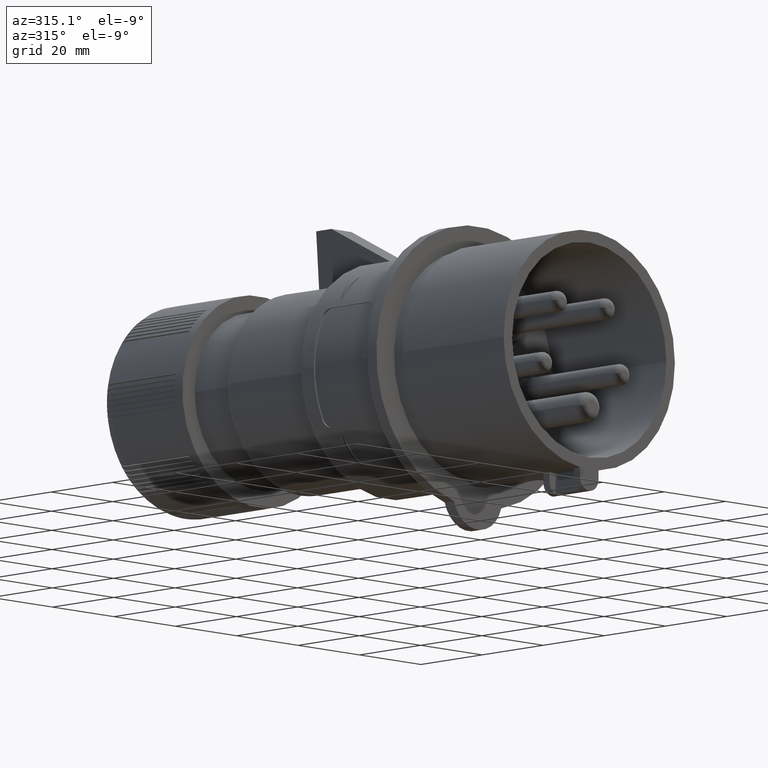
[diagram: clean part render]
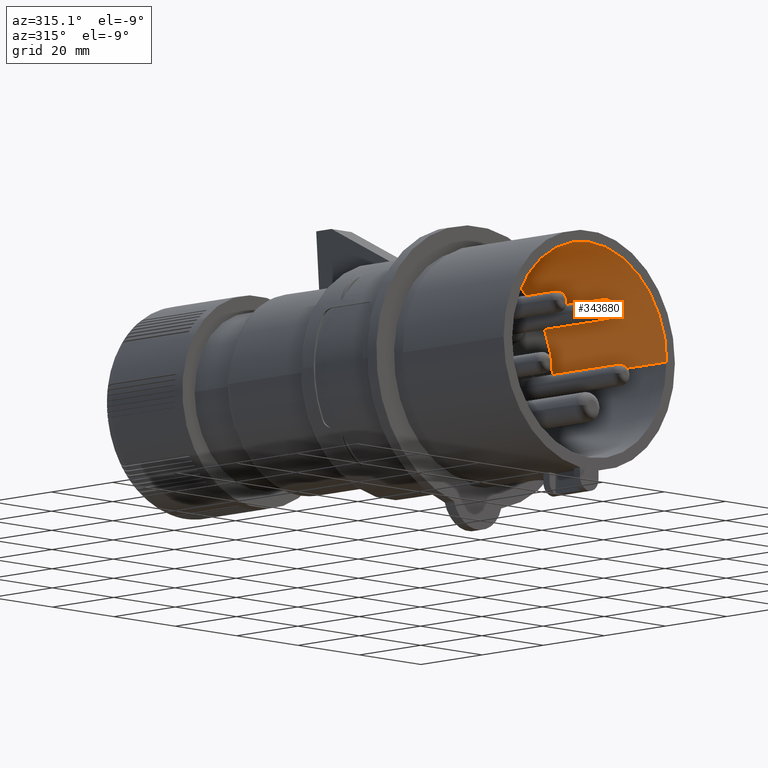
[diagram: same view with one face highlighted and labeled with its STEP entity id]
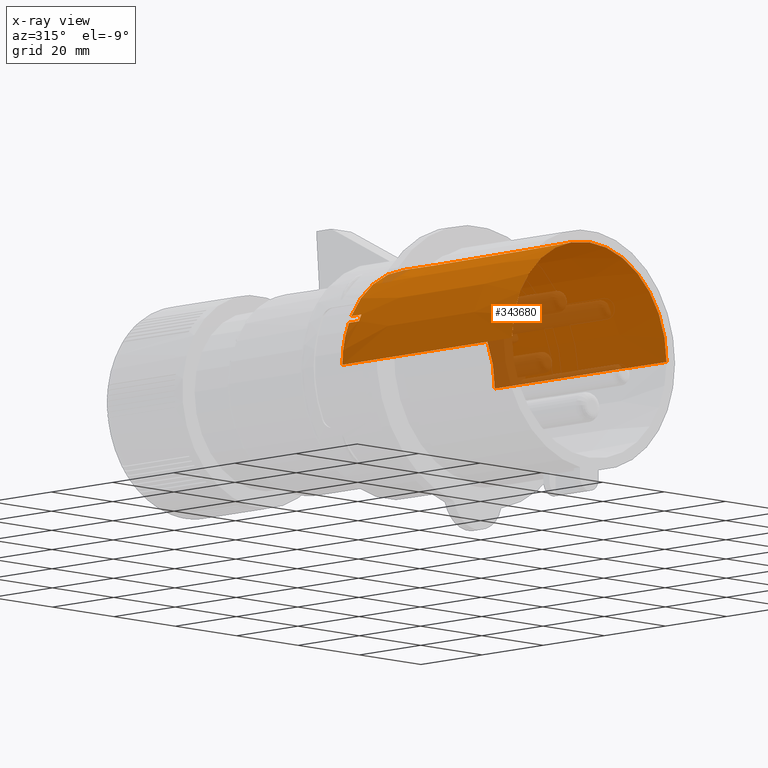
[diagram: x-ray of the same camera — body ghosted, the highlighted face saturated]
A machine part, auxiliary view. The second image highlights one B-rep face of the part: STEP entity #343680.
The next image is the same camera in x-ray: the body ghosted, the highlighted face saturated — about 17% of this face is hidden behind the body in this view.
In plain terms, the highlighted conical surface has half-angle 0.333 deg.
Its self-contained STEP definition (entity closure, byte-faithful):
#1480=CARTESIAN_POINT('',(-225.15,-115.427746695442,0.));
#1490=DIRECTION('',(-0.005817149588421,-0.999983080242194,0.));
#1500=VECTOR('',#1490,4323.42328793829);
#1510=LINE('',#1480,#1500);
#1520=CARTESIAN_POINT('',(-224.825397560574,-59.6277466615198,0.));
#1530=VERTEX_POINT('',#1520);
#1540=CARTESIAN_POINT('',(-225.15,-115.427746695442,0.));
#1550=VERTEX_POINT('',#1540);
#1560=EDGE_CURVE('',#1530,#1550,#1510,.T.);
#1580=CARTESIAN_POINT('',(-200.,-59.6277466615198,0.));
#1590=DIRECTION('',(0.,-1.,0.));
#1600=DIRECTION('',(1.,0.,0.));
#1610=AXIS2_PLACEMENT_3D('',#1580,#1590,#1600);
#1620=CIRCLE('',#1610,24.8253975605741);
#1980=CARTESIAN_POINT('',(-200.,-59.6277466615198,0.));
#1990=DIRECTION('',(0.,-1.,0.));
#2000=DIRECTION('',(1.,0.,0.));
#2010=AXIS2_PLACEMENT_3D('',#1980,#1990,#2000);
#2020=CIRCLE('',#2010,24.8253975605741);
#2030=CARTESIAN_POINT('',(-175.174602439426,-59.6277466615198,
-3.04023436601176E-15));
#2040=VERTEX_POINT('',#2030);
#2070=CARTESIAN_POINT('',(-174.85,-115.427746695442,
-3.07998669985559E-15));
#2080=DIRECTION('',(0.005817149588421,-0.999983080242194,
-7.12395362362112E-19));
#2090=VECTOR('',#2080,4323.42328793829);
#2100=LINE('',#2070,#2090);
#2110=CARTESIAN_POINT('',(-174.85,-115.427746695442,
-3.07998669985559E-15));
#2120=VERTEX_POINT('',#2110);
#2130=EDGE_CURVE('',#2040,#2120,#2100,.T.);
#2150=CARTESIAN_POINT('',(-200.,-115.427746695442,0.));
#2160=DIRECTION('',(0.,1.,0.));
#2170=DIRECTION('',(1.,0.,0.));
#2180=AXIS2_PLACEMENT_3D('',#2150,#2160,#2170);
#2190=CIRCLE('',#2180,25.15);
#35340=EDGE_CURVE('',#1550,#2120,#2190,.T.);
#78130=CARTESIAN_POINT('',(-222.713760719588,-62.9277466954416,
10.0667248303608));
#78140=VERTEX_POINT('',#78130);
#78170=CARTESIAN_POINT('',(-200.,-62.9277466954416,0.));
#78180=DIRECTION('',(0.,-1.,0.));
#78190=DIRECTION('',(1.,0.,0.));
#78200=AXIS2_PLACEMENT_3D('',#78170,#78180,#78190);
#78210=CIRCLE('',#78200,24.8445944792205);
#78220=CARTESIAN_POINT('',(-221.916674854742,-62.9277466954416,
11.7009930411239));
#78230=VERTEX_POINT('',#78220);
#78240=EDGE_CURVE('',#78230,#78140,#78210,.T.);
#84330=CARTESIAN_POINT('',(-221.885679350269,-59.6277466615198,
11.7182508685285));
#84340=VERTEX_POINT('',#84330);
#84470=CARTESIAN_POINT('',(-221.919021542686,-63.1777322625184,
11.6996850825466));
#84480=CARTESIAN_POINT('',(-221.913083702817,-62.5451668793569,
11.7029948628814));
#84490=CARTESIAN_POINT('',(-221.907144077175,-61.9126015079679,
11.7063038008192));
#84500=CARTESIAN_POINT('',(-221.895246913223,-60.6459444584101,
11.7129279717275));
#84510=CARTESIAN_POINT('',(-221.889289366309,-60.0118527810703,
11.7162432006328));
#84520=CARTESIAN_POINT('',(-221.883330019855,-59.3777611163323,
11.7195575806341));
#84530=B_SPLINE_CURVE_WITH_KNOTS('',3,(#84470,#84480,#84490,#84500,
#84510,#84520),.UNSPECIFIED.,.F.,.F.,(4,2,4),(92.082213816083,
93.9800187640699,95.8824029656906),.UNSPECIFIED.);
#84540=EDGE_CURVE('',#78230,#84340,#84530,.T.);
#99270=CARTESIAN_POINT('',(-222.708277335155,-59.6277466615198,
10.0316750600412));
#99280=VERTEX_POINT('',#99270);
#99290=EDGE_CURVE('',#99280,#1530,#1620,.T.);
#102440=EDGE_CURVE('',#2040,#84340,#2020,.T.);
#106680=CARTESIAN_POINT('',(-222.707860645972,-59.3777611161015,
10.0290192700398));
#106690=CARTESIAN_POINT('',(-222.708917819012,-60.0118527807992,
10.0357558352575));
#106700=CARTESIAN_POINT('',(-222.709973215156,-60.6459444582424,
10.0424915050351));
#106710=CARTESIAN_POINT('',(-222.712077922757,-61.9126015075048,
10.0559448449983));
#106720=CARTESIAN_POINT('',(-222.71312724272,-62.545166878582,
10.0626625194635));
#106730=CARTESIAN_POINT('',(-222.714174799396,-63.1777322616625,
10.0693793053356));
#106740=B_SPLINE_CURVE_WITH_KNOTS('',3,(#106680,#106690,#106700,#106710,
#106720,#106730),.UNSPECIFIED.,.F.,.F.,(4,2,4),(86.1076048017934,
88.0099890055459,89.907793953181),.UNSPECIFIED.);
#106750=EDGE_CURVE('',#99280,#78140,#106740,.T.);
#343530=CARTESIAN_POINT('',(-200.,-115.427746695442,0.));
#343540=DIRECTION('',(0.,-1.,0.));
#343550=DIRECTION('',(-1.,-0.,0.));
#343560=AXIS2_PLACEMENT_3D('',#343530,#343540,#343550);
#343570=CONICAL_SURFACE('',#343560,25.15,0.0058171823968971);
#343580=ORIENTED_EDGE('',*,*,#35340,.F.);
#343590=ORIENTED_EDGE('',*,*,#2130,.T.);
#343600=ORIENTED_EDGE('',*,*,#102440,.F.);
#343610=ORIENTED_EDGE('',*,*,#84540,.T.);
#343620=ORIENTED_EDGE('',*,*,#78240,.F.);
#343630=ORIENTED_EDGE('',*,*,#106750,.T.);
#343640=ORIENTED_EDGE('',*,*,#99290,.F.);
#343650=ORIENTED_EDGE('',*,*,#1560,.F.);
#343660=EDGE_LOOP('',(#343650,#343640,#343630,#343620,#343610,#343600,
#343590,#343580));
#343670=FACE_OUTER_BOUND('',#343660,.T.);
#343680=ADVANCED_FACE('',(#343670),#343570,.F.);